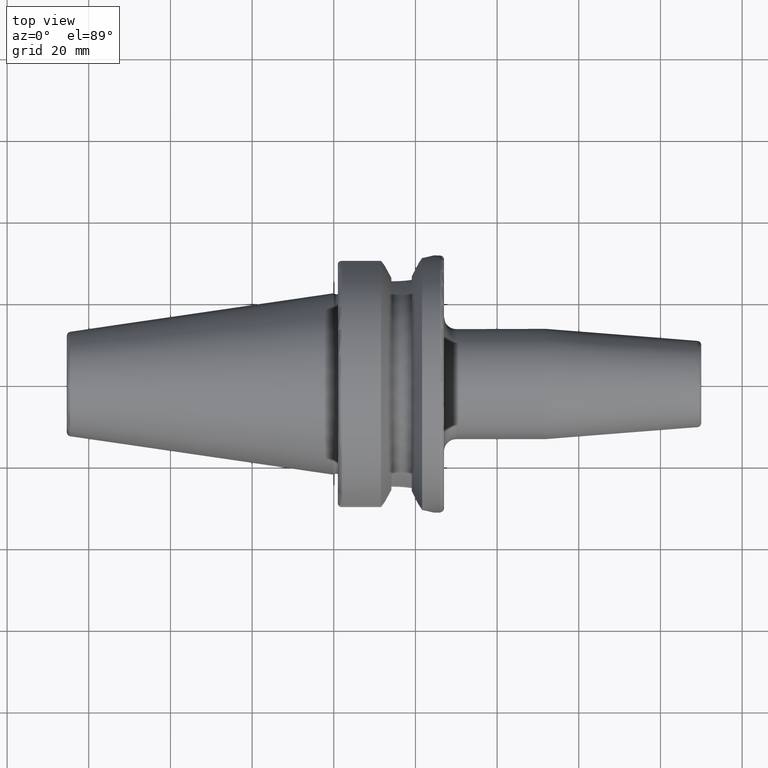
[diagram: clean part render]
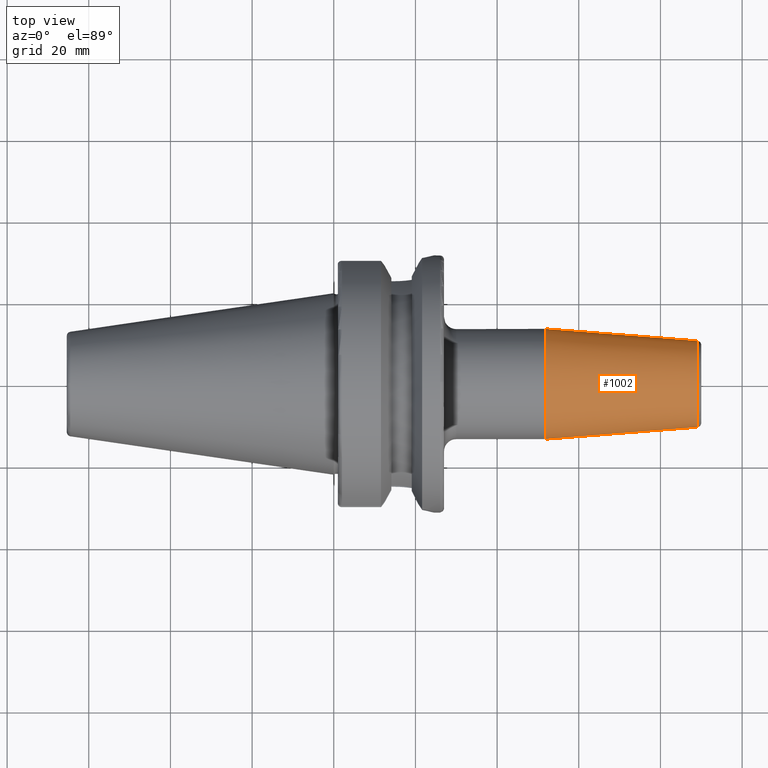
[diagram: same view with one face highlighted and labeled with its STEP entity id]
A machine part, top view. The second image highlights one B-rep face of the part: STEP entity #1002.
In plain terms, the highlighted conical surface has half-angle 4.5 deg.
Its self-contained STEP definition (entity closure, byte-faithful):
#50=CONICAL_SURFACE('',#1095,12.,0.0785398163397452);
#62=LINE('',#1541,#120);
#120=VECTOR('',#1238,12.);
#226=FACE_OUTER_BOUND('',#288,.T.);
#288=EDGE_LOOP('',(#692,#693,#694,#695,#696));
#357=CIRCLE('',#1093,10.5725268420749);
#358=CIRCLE('',#1094,10.5725268420749);
#359=CIRCLE('',#1096,13.5);
#421=VERTEX_POINT('',#1534);
#422=VERTEX_POINT('',#1536);
#423=VERTEX_POINT('',#1540);
#526=EDGE_CURVE('',#421,#422,#357,.T.);
#527=EDGE_CURVE('',#422,#421,#358,.T.);
#528=EDGE_CURVE('',#422,#423,#62,.T.);
#529=EDGE_CURVE('',#423,#423,#359,.T.);
#692=ORIENTED_EDGE('',*,*,#527,.F.);
#693=ORIENTED_EDGE('',*,*,#528,.T.);
#694=ORIENTED_EDGE('',*,*,#529,.T.);
#695=ORIENTED_EDGE('',*,*,#528,.F.);
#696=ORIENTED_EDGE('',*,*,#526,.F.);
#1002=ADVANCED_FACE('',(#226),#50,.T.);
#1093=AXIS2_PLACEMENT_3D('',#1537,#1232,#1233);
#1094=AXIS2_PLACEMENT_3D('',#1538,#1234,#1235);
#1095=AXIS2_PLACEMENT_3D('',#1539,#1236,#1237);
#1096=AXIS2_PLACEMENT_3D('',#1542,#1239,#1240);
#1232=DIRECTION('center_axis',(1.,0.,0.));
#1233=DIRECTION('ref_axis',(0.,-1.,3.06161699786838E-17));
#1234=DIRECTION('center_axis',(1.,0.,0.));
#1235=DIRECTION('ref_axis',(0.,-1.,3.06161699786838E-17));
#1236=DIRECTION('center_axis',(-1.,0.,0.));
#1237=DIRECTION('ref_axis',(0.,1.,0.));
#1238=DIRECTION('',(-0.996917333733128,-0.0784590957278453,-9.60846804471015E-18));
#1239=DIRECTION('center_axis',(1.,0.,0.));
#1240=DIRECTION('ref_axis',(0.,0.,-1.));
#1534=CARTESIAN_POINT('',(89.0784590957279,-1.29476111560465E-15,10.5725268420749));
#1536=CARTESIAN_POINT('',(89.0784590957279,-10.5725268420749,-1.29476111560465E-15));
#1537=CARTESIAN_POINT('Origin',(89.0784590957279,0.,-1.61845139450582E-15));
#1538=CARTESIAN_POINT('Origin',(89.0784590957279,0.,-1.61845139450582E-15));
#1539=CARTESIAN_POINT('Origin',(70.940692895738,0.,0.));
#1540=CARTESIAN_POINT('',(51.881385791476,-13.5,-1.65327317884893E-15));
#1541=CARTESIAN_POINT('',(70.940692895738,-12.,-1.46957615897682E-15));
#1542=CARTESIAN_POINT('Origin',(51.881385791476,0.,0.));